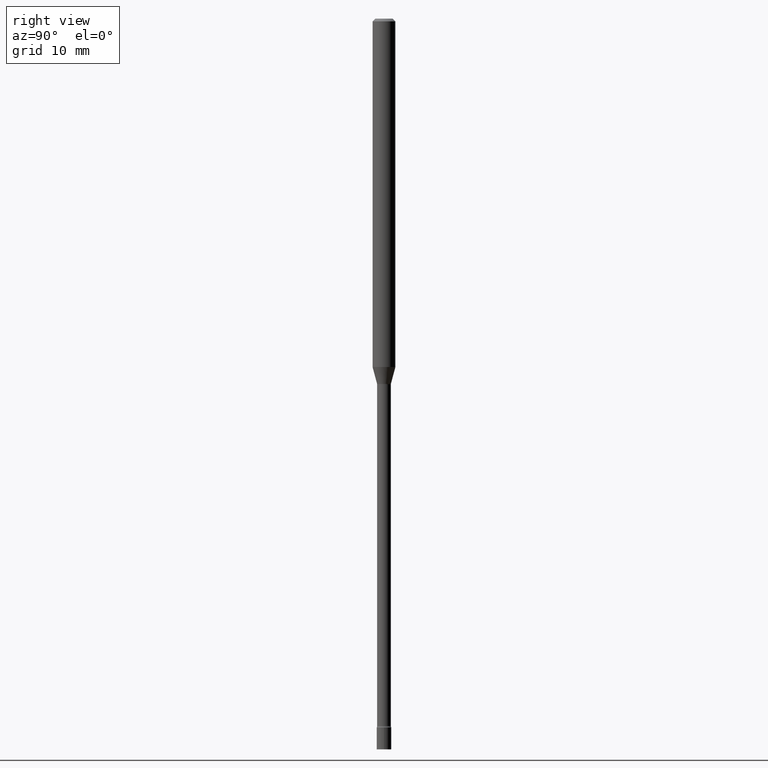
[diagram: clean part render]
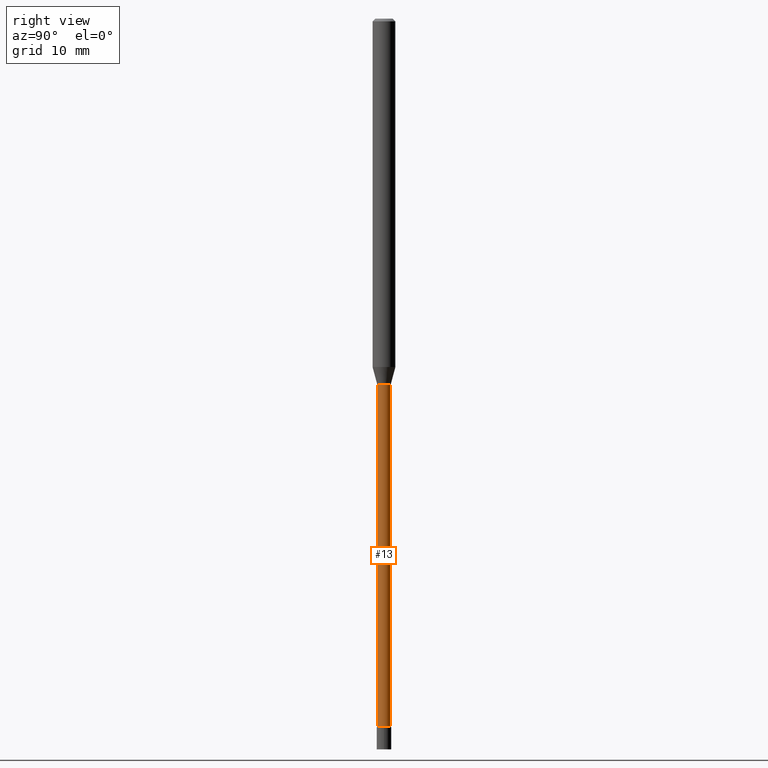
[diagram: same view with one face highlighted and labeled with its STEP entity id]
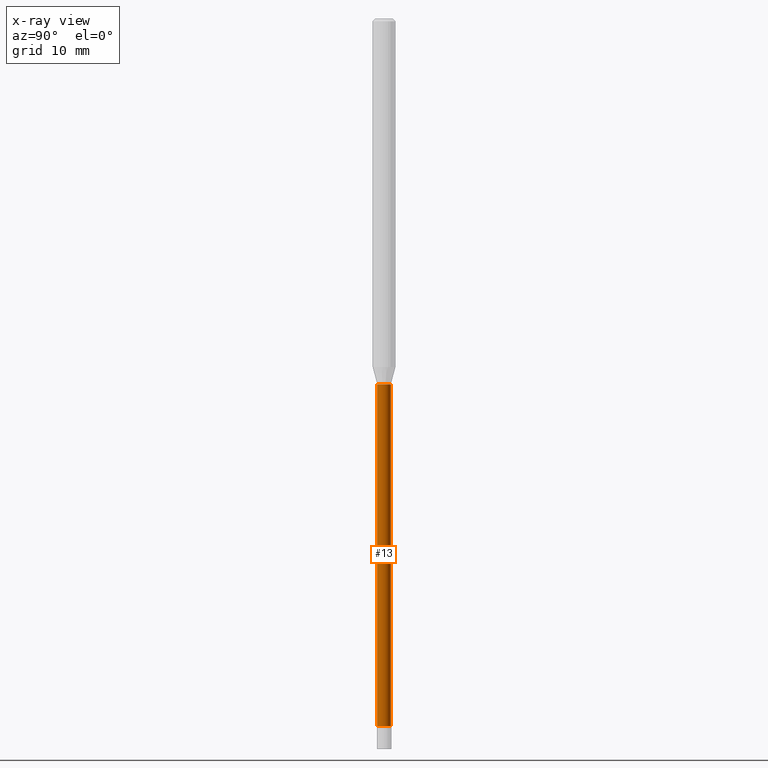
[diagram: x-ray of the same camera — body ghosted, the highlighted face saturated]
A machine part, right view. The second image highlights one B-rep face of the part: STEP entity #13.
The next image is the same camera in x-ray: the body ghosted, the highlighted face saturated — about 0% of this face is hidden behind the body in this view.
In plain terms, the highlighted cylindrical surface (edge-blend (fillet) strip) has radius 0.955 mm, axis along (-0, 0, 1).
Its self-contained STEP definition (entity closure, byte-faithful):
#7 = DIRECTION ( 'NONE',  ( -6.982962677686265922E-15, -1.000000000000000000, 3.491483579930689334E-15 ) ) ;
#9 = DIRECTION ( 'NONE',  ( -6.982962677686266711E-15, -1.000000000000000000, 0.000000000000000000 ) ) ;
#13 = ADVANCED_FACE ( 'NONE', ( #77 ), #206, .T. ) ;
#22 = LINE ( 'NONE', #216, #248 ) ;
#27 = CIRCLE ( 'NONE', #318, 0.03759999999999999454 ) ;
#39 = VERTEX_POINT ( 'NONE', #126 ) ;
#58 = LINE ( 'NONE', #83, #177 ) ;
#77 = FACE_OUTER_BOUND ( 'NONE', #161, .T. ) ;
#78 = CIRCLE ( 'NONE', #384, 0.03760000000000024434 ) ;
#83 = CARTESIAN_POINT ( 'NONE',  ( -2.625593966810044412E-16, -0.03760000000000011944, 1.312797826053943315E-16 ) ) ;
#96 = DIRECTION ( 'NONE',  ( -2.445467241242069311E-29, 3.491483579930689334E-15, 1.000000000000000000 ) ) ;
#107 = AXIS2_PLACEMENT_3D ( 'NONE', #249, #294, #7 ) ;
#117 = ORIENTED_EDGE ( 'NONE', *, *, #151, .T. ) ;
#126 = CARTESIAN_POINT ( 'NONE',  ( 2.671640686458930339E-16, 0.03759999999999300013, -2.001974787463811190 ) ) ;
#127 = CARTESIAN_POINT ( 'NONE',  ( -2.625593966809106161E-16, -0.03760000000001376130, -3.871861204020250025 ) ) ;
#144 = CARTESIAN_POINT ( 'NONE',  ( 2.756905814750144804E-16, 0.03759999999998672737, -3.871861204020250025 ) ) ;
#145 = DIRECTION ( 'NONE',  ( -2.445467241242069311E-29, 3.491483579930688939E-15, 1.000000000000000000 ) ) ;
#151 = EDGE_CURVE ( 'NONE', #481, #296, #78, .T. ) ;
#161 = EDGE_LOOP ( 'NONE', ( #117, #451, #196, #301 ) ) ;
#177 = VECTOR ( 'NONE', #96, 39.37007874015748143 ) ;
#196 = ORIENTED_EDGE ( 'NONE', *, *, #457, .F. ) ;
#206 = CYLINDRICAL_SURFACE ( 'NONE', #107, 0.03760000000000011944 ) ;
#211 = CARTESIAN_POINT ( 'NONE',  ( 9.468509737067598490E-29, -1.351853981760736890E-14, -3.871861204020250025 ) ) ;
#216 = CARTESIAN_POINT ( 'NONE',  ( 2.671640686457984692E-16, 0.03760000000000011944, -1.312797826053943315E-16 ) ) ;
#248 = VECTOR ( 'NONE', #337, 39.37007874015748143 ) ;
#249 = CARTESIAN_POINT ( 'NONE',  ( 0.000000000000000000, 0.000000000000000000, 0.000000000000000000 ) ) ;
#294 = DIRECTION ( 'NONE',  ( -2.445467241242069311E-29, 3.491483579930688939E-15, 1.000000000000000000 ) ) ;
#296 = VERTEX_POINT ( 'NONE', #144 ) ;
#301 = ORIENTED_EDGE ( 'NONE', *, *, #430, .F. ) ;
#318 = AXIS2_PLACEMENT_3D ( 'NONE', #381, #145, #446 ) ;
#337 = DIRECTION ( 'NONE',  ( -2.445467241242069311E-29, 3.491483579930689334E-15, 1.000000000000000000 ) ) ;
#370 = DIRECTION ( 'NONE',  ( -2.445467241242069311E-29, 3.491483579930688939E-15, 1.000000000000000000 ) ) ;
#381 = CARTESIAN_POINT ( 'NONE',  ( 4.895763760535303635E-29, -6.989862097865126997E-15, -2.001974787463811190 ) ) ;
#384 = AXIS2_PLACEMENT_3D ( 'NONE', #211, #370, #9 ) ;
#421 = CARTESIAN_POINT ( 'NONE',  ( -2.625593966809546444E-16, -0.03760000000000698894, -2.001974787463811190 ) ) ;
#430 = EDGE_CURVE ( 'NONE', #481, #471, #58, .T. ) ;
#446 = DIRECTION ( 'NONE',  ( -6.982962677686265922E-15, -1.000000000000000000, 0.000000000000000000 ) ) ;
#451 = ORIENTED_EDGE ( 'NONE', *, *, #455, .T. ) ;
#455 = EDGE_CURVE ( 'NONE', #296, #39, #22, .T. ) ;
#457 = EDGE_CURVE ( 'NONE', #471, #39, #27, .T. ) ;
#471 = VERTEX_POINT ( 'NONE', #421 ) ;
#481 = VERTEX_POINT ( 'NONE', #127 ) ;